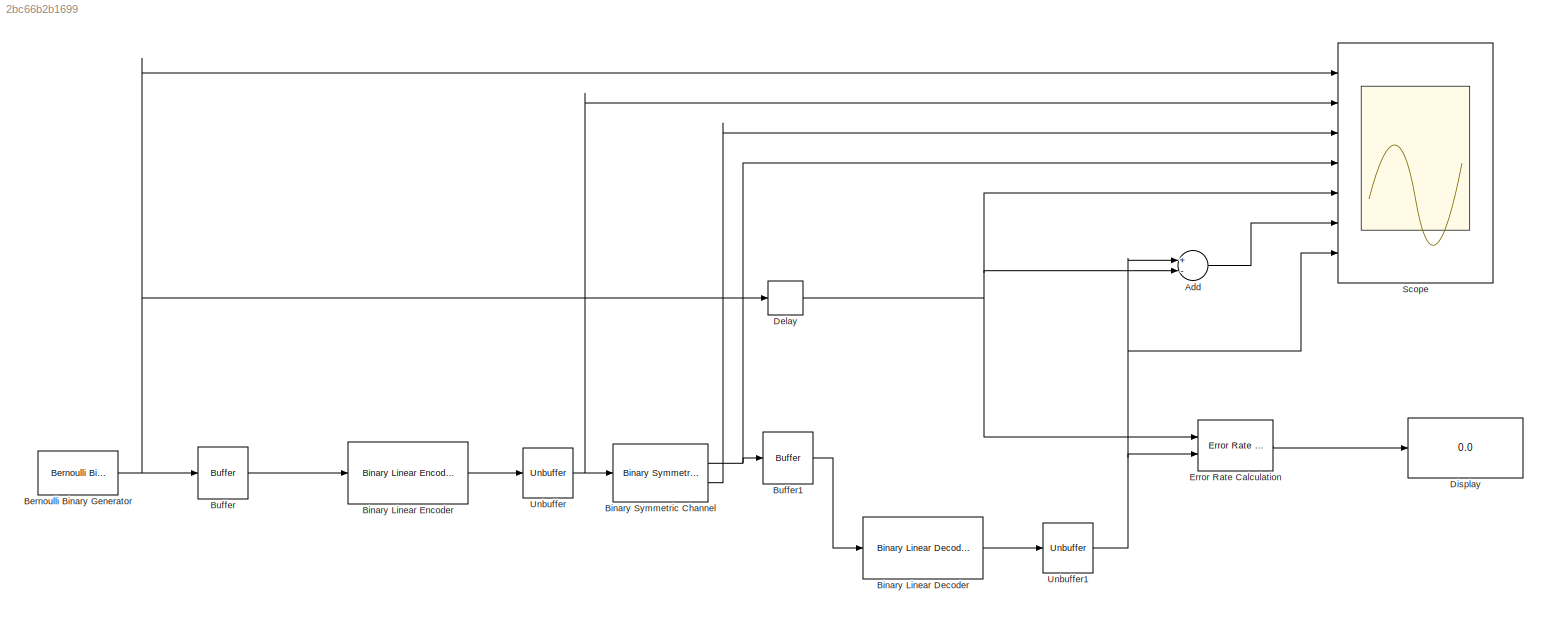
MODEL slx_2bc66b2b1699
KIND model
CONFIG AbsTol = auto
CONFIG EnableMultiTasking = off
CONFIG FixedStep = auto
CONFIG MaxStep = auto
CONFIG MinStep = auto
CONFIG RelTol = 1e-3
CONFIG SampleTimeConstraint = Unconstrained
CONFIG Solver = VariableStepAuto
CONFIG SolverName = VariableStepAuto
CONFIG StartTime = 0.0
CONFIG StopTime = 5
BLOCK [Sum] Add
  InputSameDT = off
  Inputs = +-
  OutDataTypeStr = Inherit: Inherit via internal rule
  Ports = [2, 1]
  SaturateOnIntegerOverflow = off
BLOCK [Reference] Bernoulli Binary Generator  REF=commrandsrc3/Bernoulli Binary
Generator
  Ports = [0, 1]
  SourceBlock = commrandsrc3/Bernoulli Binary\nGenerator
  SourceProductBaseCode = CM
  SourceProductName = Communications System Toolbox
  SourceType = Bernoulli Binary Generator
BLOCK [Reference] Binary Linear Decoder  REF=commblkcod2/Binary
Linear Decoder
  Ports = [1, 1]
  SourceBlock = commblkcod2/Binary\nLinear Decoder
  SourceProductBaseCode = CM
  SourceProductName = Communications System Toolbox
  SourceType = Binary Linear Decoder
BLOCK [Reference] Binary Linear Encoder  REF=commblkcod2/Binary
Linear Encoder
  Ports = [1, 1]
  SourceBlock = commblkcod2/Binary\nLinear Encoder
  SourceProductBaseCode = CM
  SourceProductName = Communications System Toolbox
  SourceType = Binary Linear Encoder
BLOCK [Reference] Binary Symmetric Channel  REF=commchan3/Binary Symmetric
Channel
  Ports = [1, 2]
  SourceBlock = commchan3/Binary Symmetric\nChannel
  SourceProductBaseCode = CM
  SourceProductName = Communications System Toolbox
  SourceType = Binary Symmetric Channel
BLOCK [Buffer] Buffer
  N = 3
  OutputFrames = off
BLOCK [Buffer] Buffer1
  N = 6
  OutputFrames = off
BLOCK [Delay] Delay
  DelayLength = 6
  InputPortMap = u0
  Ports = [1, 1]
BLOCK [Display] Display
  Decimation = 1
  Ports = [1]
BLOCK [Reference] Error Rate Calculation  REF=commsink2/Error Rate
Calculation
  Ports = [2, 1]
  SourceBlock = commsink2/Error Rate\nCalculation
  SourceProductBaseCode = CM
  SourceProductName = Communications System Toolbox
  SourceType = Error Rate Calculation
BLOCK [Scope] Scope
  Floating = off
  NumInputPorts = 7
  Ports = [7]
  ScopeSpecificationString = Simulink.scopes.TimeScopeBlockCfg('CurrentConfiguration', extmgr.ConfigurationSet(extmgr.Configuration('Core','General UI',true),extmgr.Configuration('Core','Source UI',true),extmgr.Configuration('Sources','WiredSimulink',true),extmgr.Configuration('Visuals','Time Domain',true,'SerializedDisplays',{struct('MinYLimReal','-0.125','MaxYLimReal','1.125','YLabelReal','','MinYLimMag','0.00000','MaxYLimM...<+5611ch>
BLOCK [Unbuffer] Unbuffer
  Ports = [1, 1]
BLOCK [Unbuffer] Unbuffer1
  Ports = [1, 1]
LINE Add:1 -> Scope:6
NET Bernoulli Binary Generator:1 -> Buffer:1, Delay:1, Scope:1
LINE Binary Linear Decoder:1 -> Unbuffer1:1
LINE Binary Linear Encoder:1 -> Unbuffer:1
NET Binary Symmetric Channel:1 -> Buffer1:1, Scope:4
LINE Binary Symmetric Channel:2 -> Scope:3
LINE Buffer1:1 -> Binary Linear Decoder:1
LINE Buffer:1 -> Binary Linear Encoder:1
NET Delay:1 -> Add:2, Error Rate Calculation:1, Scope:5
LINE Error Rate Calculation:1 -> Display:1
NET Unbuffer1:1 -> Add:1, Error Rate Calculation:2, Scope:7
NET Unbuffer:1 -> Binary Symmetric Channel:1, Scope:2
note: NET lines group one-source signal fan-out (src -> all destinations, sorted); 1:1 wires keep LINE
